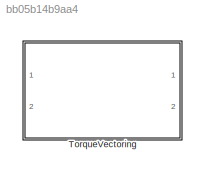
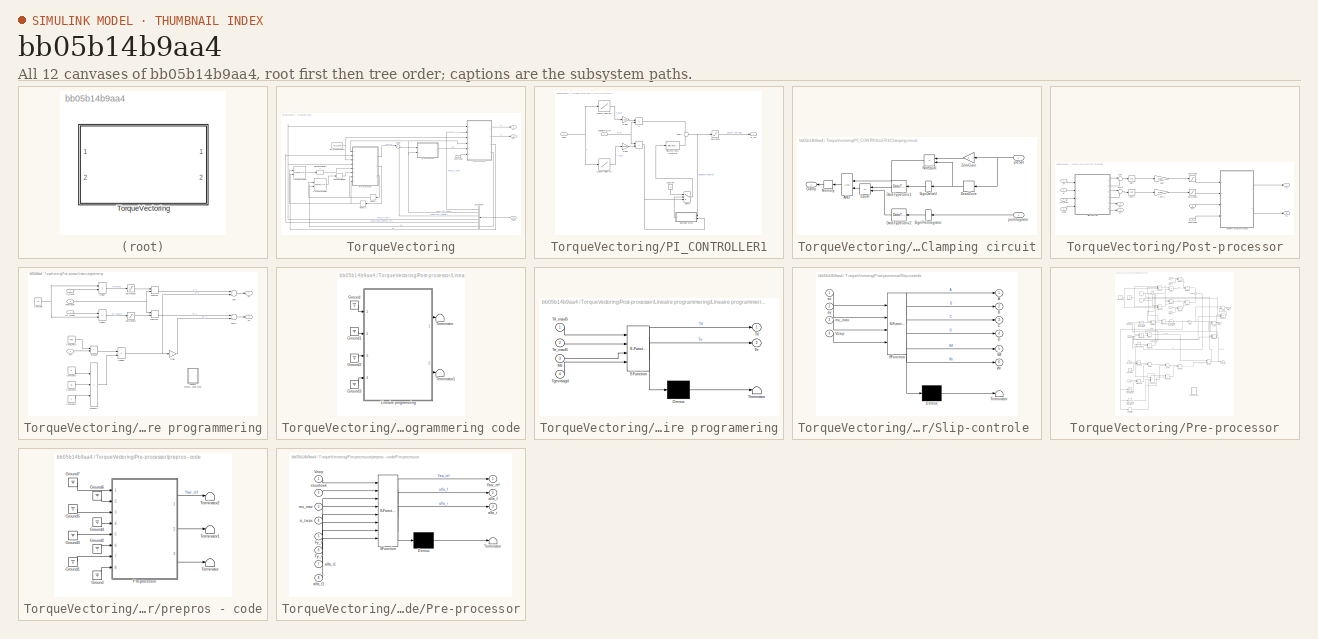
[diagram: thumbnail index - all 12 canvases of the model, root first then tree order]
MODEL slx_bb05b14b9aa4
KIND model
CONFIG AbsTol = auto
CONFIG FixedStep = 0.001
CONFIG MaxStep = auto
CONFIG MinStep = auto
CONFIG RelTol = 1e-3
CONFIG SampleTimeConstraint = Unconstrained
CONFIG Solver = ode4
CONFIG SolverMode = Auto
CONFIG SolverName = ode4
CONFIG StartTime = 0.0
CONFIG StopTime = 10.0
WORKSPACE source: MAT-file member
WORKSPACE g = 9.81
BLOCK [SubSystem] TorqueVectoring
  Ports = [2, 2]
  RequestExecContextInheritance = off
BLOCK [Lookup_n-D] TorqueVectoring/2-D Lookup Table1
  BreakpointsForDimension1 = [-15,-14,-13,-12,-11,-10,-9,-8,-7,-6,-5,-4,-3,-2,-1,0,1,2,3,4,5,6,7,8,9,10,11,12,13,14,15]
  BreakpointsForDimension2 = [200,425,650,875,1100]
  InternalRulePriority = Speed
  Ports = [2, 1]
  RndMeth = Simplest
  Table = reshape([-510,-510,-510,-510,-500,-500,-460,-460,-460,-420,-420,-380,-340,-270,-150,0,150,270,340,380,420,420,460,460,460,500,500,500,500,500,500,-1020,-1020,-1020,-1020,-1000,-1000,-1000,-960,-960,-920,-880,-800,-690,-540,-350,0,350,540,690,800,880,920,960,960,1000,1000,1000,1020,1020,1020,1020,-1540,-1540,-1540,-1540,-1500,-1500,-1500,-1460,-1420,-1360,-1300,-1230,-1040,-800,-500,0,500,800,1040,...<+394ch>
BLOCK [Lookup_n-D] TorqueVectoring/2-D Lookup Table2
  BreakpointsForDimension1 = [-15,-14,-13,-12,-11,-10,-9,-8,-7,-6,-5,-4,-3,-2,-1,0,1,2,3,4,5,6,7,8,9,10,11,12,13,14,15]
  BreakpointsForDimension2 = [200,425,650,875,1100]
  InternalRulePriority = Speed
  Ports = [2, 1]
  RndMeth = Simplest
  Table = reshape([-510,-510,-510,-510,-500,-500,-460,-460,-460,-420,-420,-380,-340,-270,-150,0,150,270,340,380,420,420,460,460,460,500,500,500,500,500,500,-1020,-1020,-1020,-1020,-1000,-1000,-1000,-960,-960,-920,-880,-800,-690,-540,-350,0,350,540,690,800,880,920,960,960,1000,1000,1000,1020,1020,1020,1020,-1540,-1540,-1540,-1540,-1500,-1500,-1500,-1460,-1420,-1360,-1300,-1230,-1040,-800,-500,0,500,800,1040,...<+394ch>
BLOCK [BusSelector] TorqueVectoring/Bus Selector
  OutputSignals = Read_ay_m/s²,Read_Vhcl_Velocity,Read_Vhcl_YawRate,Read_ax_m/s²,Read_Mean_Steering_Angle_Wheels,Read_Steering_angle_rad
  Ports = [1, 6]
BLOCK [Inport] TorqueVectoring/Inputs
  IconDisplay = Port number
  Port = 2
BLOCK [Memory] TorqueVectoring/Memory
  X0 = 0.001
BLOCK [Memory] TorqueVectoring/Memory1
  X0 = 0.001
BLOCK [Constant] TorqueVectoring/Mu_ DroogWegdek
  Value = mu_max
BLOCK [SubSystem] TorqueVectoring/PI_CONTROLLER1
  Ports = [2, 1]
  RequestExecContextInheritance = off
BLOCK [SubSystem] TorqueVectoring/PI_CONTROLLER1/Clamping circuit
  Ports = [2, 1]
  RequestExecContextInheritance = off
BLOCK [Logic] TorqueVectoring/PI_CONTROLLER1/Clamping circuit/AND
  DisableCoverage = on
  Ports = [2, 1]
BLOCK [Outport] TorqueVectoring/PI_CONTROLLER1/Clamping circuit/Clamp
  DisableCoverage = on
  IconDisplay = Port number
BLOCK [DataTypeConversion] TorqueVectoring/PI_CONTROLLER1/Clamping circuit/DataTypeConv1
  DisableCoverage = on
  LockScale = on
  OutDataTypeStr = int8
BLOCK [DataTypeConversion] TorqueVectoring/PI_CONTROLLER1/Clamping circuit/DataTypeConv2
  DisableCoverage = on
  LockScale = on
  OutDataTypeStr = int8
BLOCK [DeadZone] TorqueVectoring/PI_CONTROLLER1/Clamping circuit/DeadZone
  DisableCoverage = on
  LowerValue = -100
  UpperValue = 100
BLOCK [RelationalOperator] TorqueVectoring/PI_CONTROLLER1/Clamping circuit/Equal
  DisableCoverage = on
  Operator = ==
  Ports = [2, 1]
BLOCK [Memory] TorqueVectoring/PI_CONTROLLER1/Clamping circuit/Memory
  DisableCoverage = on
BLOCK [RelationalOperator] TorqueVectoring/PI_CONTROLLER1/Clamping circuit/NotEqual
  DisableCoverage = on
  Operator = ~=
  Ports = [2, 1]
BLOCK [Signum] TorqueVectoring/PI_CONTROLLER1/Clamping circuit/SignDeltaU
  DisableCoverage = on
BLOCK [Signum] TorqueVectoring/PI_CONTROLLER1/Clamping circuit/SignPreIntegrator
  DisableCoverage = on
BLOCK [Gain] TorqueVectoring/PI_CONTROLLER1/Clamping circuit/ZeroGain
  DisableCoverage = on
  Gain = 0
BLOCK [Inport] TorqueVectoring/PI_CONTROLLER1/Clamping circuit/preIntegrator
  DisableCoverage = on
  IconDisplay = Port number
  Port = 2
BLOCK [Inport] TorqueVectoring/PI_CONTROLLER1/Clamping circuit/preSat
  DisableCoverage = on
  IconDisplay = Port number
BLOCK [Constant] TorqueVectoring/PI_CONTROLLER1/Constant
  DisableCoverage = on
  OutDataTypeStr = Inherit: Inherit via back propagation
  PreserveConstantTs = on
  Value = 0
BLOCK [DiscreteIntegrator] TorqueVectoring/PI_CONTROLLER1/Discrete-Time Integrator
  InitialConditionSetting = State (most efficient)
  LimitOutput = on
  LowerSaturationLimit = -100
  Ports = [1, 1]
  SampleTime = 0.001
  UpperSaturationLimit = 100
BLOCK [Gain] TorqueVectoring/PI_CONTROLLER1/Gain1
  Gain = 1/10
  OutDataTypeStr = Inherit: Inherit via internal rule
  ParamDataTypeStr = Inherit: Inherit via internal rule
  SaturateOnIntegerOverflow = off
BLOCK [Gain] TorqueVectoring/PI_CONTROLLER1/Gain2
  Gain = 1/1000
  OutDataTypeStr = Inherit: Inherit via internal rule
  ParamDataTypeStr = Inherit: Inherit via internal rule
  SaturateOnIntegerOverflow = off
BLOCK [Product] TorqueVectoring/PI_CONTROLLER1/I
  InputSameDT = off
  OutDataTypeStr = Inherit: Inherit via internal rule
  Ports = [2, 1]
  SaturateOnIntegerOverflow = off
BLOCK [Lookup] TorqueVectoring/PI_CONTROLLER1/Lookup Table IifV
  InputValues = [-1 1 3 5 7 8 10 12 13 15 18 22 26 30 35 40]
  SaturateOnIntegerOverflow = off
  Table = [50352886.7892156 50352886.7892156 5589135.45551528 1921428.35851846 975393.735493402 705695.225360316 447460.758905211 279243.629097448 236454.771525978 158654.332416002 94344.5016145154 48661.6461191947 26632.8595225856 13884.3621478696 5589.69756030357 1773.78141835761]
BLOCK [Lookup] TorqueVectoring/PI_CONTROLLER1/Lookup Table PifV
  InputValues = [-1 1 3 5 7 8 10 12 13 15 18 22 26 30 35 40]
  SaturateOnIntegerOverflow = off
  Table = [34635.2718980569 34635.2718980569 11590.7926431014 6627.38536761836 4783.12358808128 3932.42492202412 3196.93917901615 2407.06272090184 2253.13792386493 1777.83703218778 1346.39413645714 954.27715290151 744.973517942164 573.513734145603 406.894553185122 261.731683767634]
BLOCK [Product] TorqueVectoring/PI_CONTROLLER1/P
  InputSameDT = off
  OutDataTypeStr = Inherit: Inherit via internal rule
  Ports = [2, 1]
  SaturateOnIntegerOverflow = off
BLOCK [Outport] TorqueVectoring/PI_CONTROLLER1/PI_out
  IconDisplay = Port number
BLOCK [Saturate] TorqueVectoring/PI_CONTROLLER1/Saturation
  InputPortMap = u0
  LowerLimit = -500
  Ports = [1, 1]
  UpperLimit = 500
BLOCK [Sum] TorqueVectoring/PI_CONTROLLER1/Sum1
  IconShape = round
  InputSameDT = off
  OutDataTypeStr = Inherit: Inherit via internal rule
  Ports = [2, 1]
  SaturateOnIntegerOverflow = off
BLOCK [Switch] TorqueVectoring/PI_CONTROLLER1/Switch
  Criteria = u2 > Threshold
BLOCK [Inport] TorqueVectoring/PI_CONTROLLER1/Vzwp
  IconDisplay = Port number
  Port = 2
BLOCK [Inport] TorqueVectoring/PI_CONTROLLER1/YawRate-Error
  IconDisplay = Port number
BLOCK [SubSystem] TorqueVectoring/Post-processor
  Ports = [6, 4]
  RequestExecContextInheritance = off
BLOCK [SubSystem] TorqueVectoring/Post-processor/Lineaire programmering
  Ports = [4, 2]
  RequestExecContextInheritance = off
BLOCK [Constant] TorqueVectoring/Post-processor/Lineaire programmering/Constant
  Value = Gr
BLOCK [Constant] TorqueVectoring/Post-processor/Lineaire programmering/Constant1
  Value = Reff
BLOCK [Constant] TorqueVectoring/Post-processor/Lineaire programmering/Constant2
  Value = Sr
BLOCK [Constant] TorqueVectoring/Post-processor/Lineaire programmering/Constant3
  Value = 2
BLOCK [Constant] TorqueVectoring/Post-processor/Lineaire programmering/Constant4
  Value = Gr
BLOCK [Product] TorqueVectoring/Post-processor/Lineaire programmering/Divide
  InputSameDT = off
  Inputs = /*
  OutDataTypeStr = Inherit: Inherit via internal rule
  Ports = [2, 1]
  RndMeth = Floor
  SaturateOnIntegerOverflow = off
BLOCK [Product] TorqueVectoring/Post-processor/Lineaire programmering/Divide1
  InputSameDT = off
  Inputs = */
  OutDataTypeStr = Inherit: Inherit via internal rule
  Ports = [2, 1]
  RndMeth = Floor
  SaturateOnIntegerOverflow = off
BLOCK [Product] TorqueVectoring/Post-processor/Lineaire programmering/Divide2
  InputSameDT = off
  Inputs = */
  OutDataTypeStr = Inherit: Inherit via internal rule
  Ports = [2, 1]
  RndMeth = Floor
  SaturateOnIntegerOverflow = off
BLOCK [Gain] TorqueVectoring/Post-processor/Lineaire programmering/Gain
  Gain = -1
  OutDataTypeStr = Inherit: Inherit via internal rule
  ParamDataTypeStr = Inherit: Inherit via internal rule
  SaturateOnIntegerOverflow = off
BLOCK [SubSystem] TorqueVectoring/Post-processor/Lineaire programmering/Lineaire programmering code
  Ports = []
  RequestExecContextInheritance = off
BLOCK [Ground] TorqueVectoring/Post-processor/Lineaire programmering/Lineaire programmering code/Ground
BLOCK [Ground] TorqueVectoring/Post-processor/Lineaire programmering/Lineaire programmering code/Ground1
BLOCK [Ground] TorqueVectoring/Post-processor/Lineaire programmering/Lineaire programmering code/Ground2
BLOCK [Ground] TorqueVectoring/Post-processor/Lineaire programmering/Lineaire programmering code/Ground3
BLOCK [SubSystem] TorqueVectoring/Post-processor/Lineaire programmering/Lineaire programmering code/Lineaire programering
  ErrorFcn = Stateflow.Translate.translate
  PermitHierarchicalResolution = ExplicitOnly
  Ports = [4, 2]
  RequestExecContextInheritance = off
  SFBlockType = MATLAB Function
  TreatAsAtomicUnit = on
BLOCK [Demux] TorqueVectoring/Post-processor/Lineaire programmering/Lineaire programmering code/Lineaire programering/ Demux 
  Outputs = 1
  Ports = [1, 1]
BLOCK [S-Function] TorqueVectoring/Post-processor/Lineaire programmering/Lineaire programmering code/Lineaire programering/ SFunction 
  EnableBusSupport = on
  FunctionName = sf_sfun
  PortCounts = [4 3]
  Ports = [4, 3]
  Tag = Stateflow S-Function Torque_Vectoring_Controller 8
BLOCK [Terminator] TorqueVectoring/Post-processor/Lineaire programmering/Lineaire programmering code/Lineaire programering/ Terminator 
BLOCK [Inport] TorqueVectoring/Post-processor/Lineaire programmering/Lineaire programmering code/Lineaire programering/Mz
  IconDisplay = Port number
  Port = 3
BLOCK [Inport] TorqueVectoring/Post-processor/Lineaire programmering/Lineaire programmering code/Lineaire programering/Tgevraagd
  IconDisplay = Port number
  Port = 4
BLOCK [Outport] TorqueVectoring/Post-processor/Lineaire programmering/Lineaire programmering code/Lineaire programering/Trl
  IconDisplay = Port number
BLOCK [Inport] TorqueVectoring/Post-processor/Lineaire programmering/Lineaire programmering code/Lineaire programering/Trl_maxB
  IconDisplay = Port number
BLOCK [Outport] TorqueVectoring/Post-processor/Lineaire programmering/Lineaire programmering code/Lineaire programering/Trr
  IconDisplay = Port number
  Port = 2
BLOCK [Inport] TorqueVectoring/Post-processor/Lineaire programmering/Lineaire programmering code/Lineaire programering/Trr_maxB
  IconDisplay = Port number
  Port = 2
BLOCK [Terminator] TorqueVectoring/Post-processor/Lineaire programmering/Lineaire programmering code/Terminator
BLOCK [Terminator] TorqueVectoring/Post-processor/Lineaire programmering/Lineaire programmering code/Terminator1
BLOCK [MinMax] TorqueVectoring/Post-processor/Lineaire programmering/MinMax
  InputSameDT = off
  Inputs = 2
  Ports = [2, 1]
  SaturateOnIntegerOverflow = off
BLOCK [MinMax] TorqueVectoring/Post-processor/Lineaire programmering/MinMax1
  InputSameDT = off
  Inputs = 2
  Ports = [2, 1]
  SaturateOnIntegerOverflow = off
BLOCK [Inport] TorqueVectoring/Post-processor/Lineaire programmering/Mz
  IconDisplay = Port number
  Port = 3
BLOCK [Product] TorqueVectoring/Post-processor/Lineaire programmering/Product
  InputSameDT = off
  OutDataTypeStr = Inherit: Inherit via internal rule
  Ports = [2, 1]
  RndMeth = Floor
  SaturateOnIntegerOverflow = off
BLOCK [Product] TorqueVectoring/Post-processor/Lineaire programmering/Product1
  InputSameDT = off
  Inputs = 3
  OutDataTypeStr = Inherit: Inherit via internal rule
  Ports = [3, 1]
  RndMeth = Floor
  SaturateOnIntegerOverflow = off
BLOCK [Saturate] TorqueVectoring/Post-processor/Lineaire programmering/Saturation1
  InputPortMap = u0
  LowerLimit = -Tmax
  Ports = [1, 1]
  UpperLimit = Tmax
BLOCK [Saturate] TorqueVectoring/Post-processor/Lineaire programmering/Saturation2
  InputPortMap = u0
  LowerLimit = -Tmax
  Ports = [1, 1]
  UpperLimit = Tmax
BLOCK [Sum] TorqueVectoring/Post-processor/Lineaire programmering/Sum
  InputSameDT = off
  OutDataTypeStr = Inherit: Inherit via internal rule
  Ports = [2, 1]
  SaturateOnIntegerOverflow = off
BLOCK [Sum] TorqueVectoring/Post-processor/Lineaire programmering/Sum1
  InputSameDT = off
  OutDataTypeStr = Inherit: Inherit via internal rule
  Ports = [2, 1]
  SaturateOnIntegerOverflow = off
BLOCK [Inport] TorqueVectoring/Post-processor/Lineaire programmering/Tgevraagd
  IconDisplay = Port number
  Port = 4
BLOCK [Outport] TorqueVectoring/Post-processor/Lineaire programmering/Trl
  IconDisplay = Port number
BLOCK [Inport] TorqueVectoring/Post-processor/Lineaire programmering/Trl_maxB
  IconDisplay = Port number
BLOCK [Outport] TorqueVectoring/Post-processor/Lineaire programmering/Trr
  IconDisplay = Port number
  Port = 2
BLOCK [Inport] TorqueVectoring/Post-processor/Lineaire programmering/Trr_maxB
  IconDisplay = Port number
  Port = 2
BLOCK [Inport] TorqueVectoring/Post-processor/Mz
  IconDisplay = Port number
  Port = 5
BLOCK [Gain] TorqueVectoring/Post-processor/Reff
  Gain = Reff
  OutDataTypeStr = Inherit: Inherit via internal rule
  ParamDataTypeStr = Inherit: Inherit via internal rule
  SaturateOnIntegerOverflow = off
BLOCK [Gain] TorqueVectoring/Post-processor/Reff1
  Gain = Reff
  OutDataTypeStr = Inherit: Inherit via internal rule
  ParamDataTypeStr = Inherit: Inherit via internal rule
  SaturateOnIntegerOverflow = off
BLOCK [Saturate] TorqueVectoring/Post-processor/Saturation
  InputPortMap = u0
  LowerLimit = -Gr*Tmax*mu_max
  Ports = [1, 1]
  UpperLimit = Gr*Tmax*mu_max
BLOCK [Saturate] TorqueVectoring/Post-processor/Saturation1
  InputPortMap = u0
  LowerLimit = -Gr*Tmax*mu_max
  Ports = [1, 1]
  UpperLimit = Gr*Tmax*mu_max
BLOCK [SubSystem] TorqueVectoring/Post-processor/Slip-controle 
  ErrorFcn = Stateflow.Translate.translate
  PermitHierarchicalResolution = ExplicitOnly
  Ports = [4, 6]
  RequestExecContextInheritance = off
  SFBlockType = MATLAB Function
  TreatAsAtomicUnit = on
BLOCK [Demux] TorqueVectoring/Post-processor/Slip-controle / Demux 
  Outputs = 1
  Ports = [1, 1]
BLOCK [S-Function] TorqueVectoring/Post-processor/Slip-controle / SFunction 
  EnableBusSupport = on
  FunctionName = sf_sfun
  PortCounts = [4 7]
  Ports = [4, 7]
  Tag = Stateflow S-Function Torque_Vectoring_Controller 9
BLOCK [Terminator] TorqueVectoring/Post-processor/Slip-controle / Terminator 
BLOCK [Outport] TorqueVectoring/Post-processor/Slip-controle /A
  IconDisplay = Port number
BLOCK [Outport] TorqueVectoring/Post-processor/Slip-controle /B
  IconDisplay = Port number
  Port = 2
BLOCK [Outport] TorqueVectoring/Post-processor/Slip-controle /C
  IconDisplay = Port number
  Port = 3
BLOCK [Outport] TorqueVectoring/Post-processor/Slip-controle /D
  IconDisplay = Port number
  Port = 4
BLOCK [Inport] TorqueVectoring/Post-processor/Slip-controle /Vzwp
  IconDisplay = Port number
  Port = 4
BLOCK [Outport] TorqueVectoring/Post-processor/Slip-controle /Wf
  IconDisplay = Port number
  Port = 5
BLOCK [Outport] TorqueVectoring/Post-processor/Slip-controle /Wr
  IconDisplay = Port number
  Port = 6
BLOCK [Inport] TorqueVectoring/Post-processor/Slip-controle /ax
  IconDisplay = Port number
BLOCK [Inport] TorqueVectoring/Post-processor/Slip-controle /ay
  IconDisplay = Port number
  Port = 2
BLOCK [Inport] TorqueVectoring/Post-processor/Slip-controle /mu_max
  IconDisplay = Port number
  Port = 3
BLOCK [Sqrt] TorqueVectoring/Post-processor/Sqrt
BLOCK [Sqrt] TorqueVectoring/Post-processor/Sqrt1
BLOCK [Sum] TorqueVectoring/Post-processor/Sum
  IconShape = round
  InputSameDT = off
  Inputs = |++
  OutDataTypeStr = Inherit: Inherit via internal rule
  Ports = [2, 1]
  SaturateOnIntegerOverflow = off
BLOCK [Sum] TorqueVectoring/Post-processor/Sum1
  IconShape = round
  InputSameDT = off
  Inputs = |++
  OutDataTypeStr = Inherit: Inherit via internal rule
  Ports = [2, 1]
  SaturateOnIntegerOverflow = off
BLOCK [Inport] TorqueVectoring/Post-processor/Tgevraagd
  IconDisplay = Port number
  Port = 6
BLOCK [Outport] TorqueVectoring/Post-processor/Trl
  IconDisplay = Port number
BLOCK [Outport] TorqueVectoring/Post-processor/Trr
  IconDisplay = Port number
  Port = 2
BLOCK [Inport] TorqueVectoring/Post-processor/Vzwp
  IconDisplay = Port number
  Port = 4
BLOCK [Outport] TorqueVectoring/Post-processor/Wf
  IconDisplay = Port number
  Port = 3
BLOCK [Outport] TorqueVectoring/Post-processor/Wr
  IconDisplay = Port number
  Port = 4
BLOCK [Inport] TorqueVectoring/Post-processor/ax
  IconDisplay = Port number
BLOCK [Inport] TorqueVectoring/Post-processor/ay
  IconDisplay = Port number
  Port = 2
BLOCK [Inport] TorqueVectoring/Post-processor/mu_max
  IconDisplay = Port number
  Port = 3
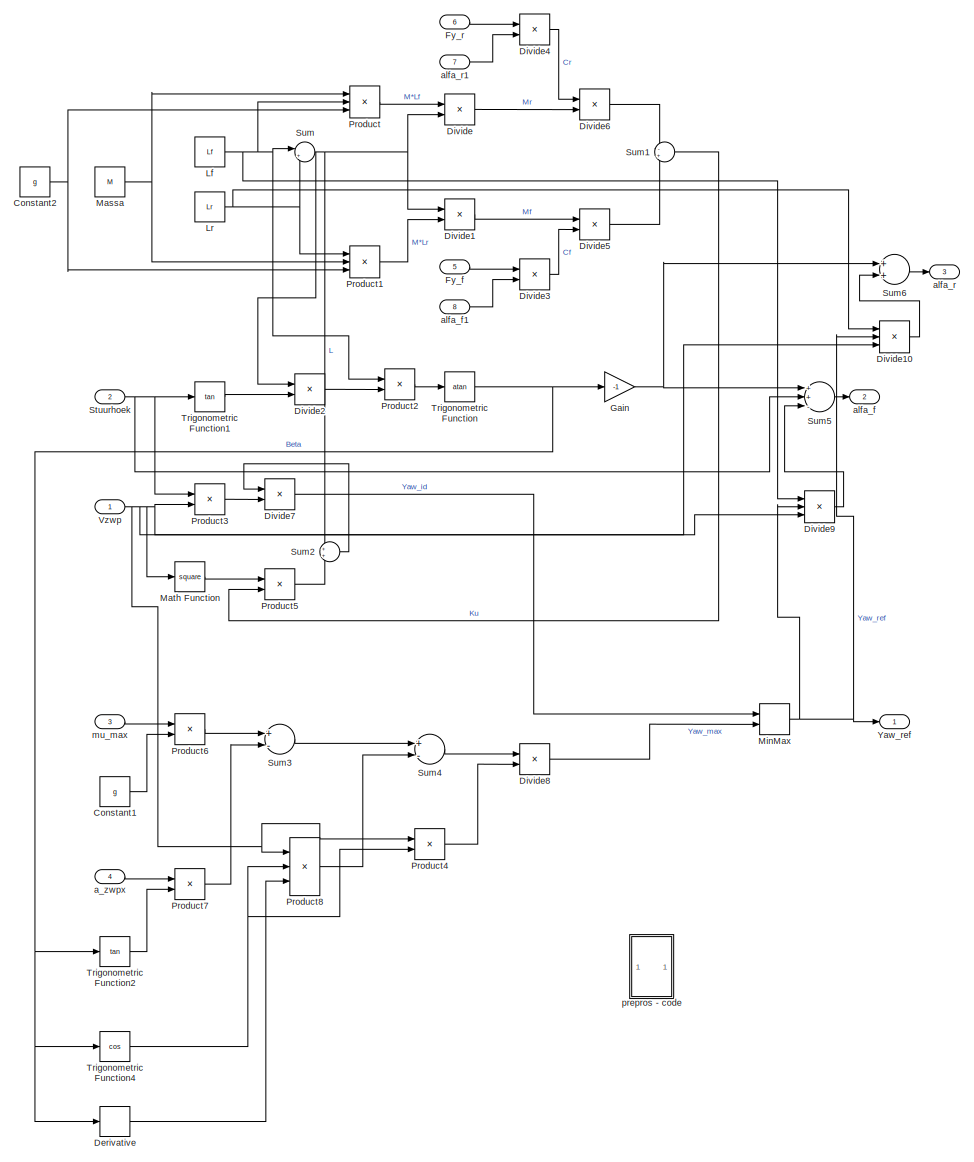
[diagram: TorqueVectoring/Pre-processor - part 1/1, most of the canvas]
BLOCK [SubSystem] TorqueVectoring/Pre-processor
  Ports = [8, 3]
  RequestExecContextInheritance = off
BLOCK [Constant] TorqueVectoring/Pre-processor/Constant1
  Value = g
BLOCK [Constant] TorqueVectoring/Pre-processor/Constant2
  Value = g
BLOCK [Derivative] TorqueVectoring/Pre-processor/Derivative
BLOCK [Product] TorqueVectoring/Pre-processor/Divide
  InputSameDT = off
  Inputs = */
  OutDataTypeStr = Inherit: Inherit via internal rule
  Ports = [2, 1]
  RndMeth = Floor
  SaturateOnIntegerOverflow = off
BLOCK [Product] TorqueVectoring/Pre-processor/Divide1
  InputSameDT = off
  Inputs = /*
  OutDataTypeStr = Inherit: Inherit via internal rule
  Ports = [2, 1]
  RndMeth = Floor
  SaturateOnIntegerOverflow = off
BLOCK [Product] TorqueVectoring/Pre-processor/Divide10
  InputSameDT = off
  Inputs = **/
  OutDataTypeStr = Inherit: Inherit via internal rule
  Ports = [3, 1]
  RndMeth = Floor
  SaturateOnIntegerOverflow = off
BLOCK [Product] TorqueVectoring/Pre-processor/Divide2
  InputSameDT = off
  Inputs = /*
  OutDataTypeStr = Inherit: Inherit via internal rule
  Ports = [2, 1]
  RndMeth = Floor
  SaturateOnIntegerOverflow = off
BLOCK [Product] TorqueVectoring/Pre-processor/Divide3
  InputSameDT = off
  Inputs = */
  OutDataTypeStr = Inherit: Inherit via internal rule
  Ports = [2, 1]
  RndMeth = Floor
  SaturateOnIntegerOverflow = off
BLOCK [Product] TorqueVectoring/Pre-processor/Divide4
  InputSameDT = off
  Inputs = */
  OutDataTypeStr = Inherit: Inherit via internal rule
  Ports = [2, 1]
  RndMeth = Floor
  SaturateOnIntegerOverflow = off
BLOCK [Product] TorqueVectoring/Pre-processor/Divide5
  InputSameDT = off
  Inputs = */
  OutDataTypeStr = Inherit: Inherit via internal rule
  Ports = [2, 1]
  RndMeth = Floor
  SaturateOnIntegerOverflow = off
BLOCK [Product] TorqueVectoring/Pre-processor/Divide6
  InputSameDT = off
  Inputs = /*
  OutDataTypeStr = Inherit: Inherit via internal rule
  Ports = [2, 1]
  RndMeth = Floor
  SaturateOnIntegerOverflow = off
BLOCK [Product] TorqueVectoring/Pre-processor/Divide7
  InputSameDT = off
  Inputs = /*
  OutDataTypeStr = Inherit: Inherit via internal rule
  Ports = [2, 1]
  RndMeth = Floor
  SaturateOnIntegerOverflow = off
BLOCK [Product] TorqueVectoring/Pre-processor/Divide8
  InputSameDT = off
  Inputs = */
  OutDataTypeStr = Inherit: Inherit via internal rule
  Ports = [2, 1]
  RndMeth = Floor
  SaturateOnIntegerOverflow = off
BLOCK [Product] TorqueVectoring/Pre-processor/Divide9
  InputSameDT = off
  Inputs = **/
  OutDataTypeStr = Inherit: Inherit via internal rule
  Ports = [3, 1]
  RndMeth = Floor
  SaturateOnIntegerOverflow = off
BLOCK [Inport] TorqueVectoring/Pre-processor/Fy_f
  IconDisplay = Port number
  Port = 5
BLOCK [Inport] TorqueVectoring/Pre-processor/Fy_r
  IconDisplay = Port number
  Port = 6
BLOCK [Gain] TorqueVectoring/Pre-processor/Gain
  Gain = -1
  OutDataTypeStr = Inherit: Inherit via internal rule
  ParamDataTypeStr = Inherit: Inherit via internal rule
  SaturateOnIntegerOverflow = off
BLOCK [Constant] TorqueVectoring/Pre-processor/Lf
  Value = Lf
BLOCK [Constant] TorqueVectoring/Pre-processor/Lr
  Value = Lr
BLOCK [Constant] TorqueVectoring/Pre-processor/Massa
  Value = M
BLOCK [Math] TorqueVectoring/Pre-processor/Math Function
  Operator = square
  Ports = [1, 1]
BLOCK [MinMax] TorqueVectoring/Pre-processor/MinMax
  InputSameDT = off
  Inputs = 2
  Ports = [2, 1]
  SaturateOnIntegerOverflow = off
BLOCK [Product] TorqueVectoring/Pre-processor/Product
  InputSameDT = off
  Inputs = 3
  OutDataTypeStr = Inherit: Inherit via internal rule
  Ports = [3, 1]
  RndMeth = Floor
  SaturateOnIntegerOverflow = off
BLOCK [Product] TorqueVectoring/Pre-processor/Product1
  InputSameDT = off
  Inputs = 3
  OutDataTypeStr = Inherit: Inherit via internal rule
  Ports = [3, 1]
  RndMeth = Floor
  SaturateOnIntegerOverflow = off
BLOCK [Product] TorqueVectoring/Pre-processor/Product2
  InputSameDT = off
  OutDataTypeStr = Inherit: Inherit via internal rule
  Ports = [2, 1]
  RndMeth = Floor
  SaturateOnIntegerOverflow = off
BLOCK [Product] TorqueVectoring/Pre-processor/Product3
  InputSameDT = off
  OutDataTypeStr = Inherit: Inherit via internal rule
  Ports = [2, 1]
  RndMeth = Floor
  SaturateOnIntegerOverflow = off
BLOCK [Product] TorqueVectoring/Pre-processor/Product4
  InputSameDT = off
  OutDataTypeStr = Inherit: Inherit via internal rule
  Ports = [2, 1]
  RndMeth = Floor
  SaturateOnIntegerOverflow = off
BLOCK [Product] TorqueVectoring/Pre-processor/Product5
  InputSameDT = off
  OutDataTypeStr = Inherit: Inherit via internal rule
  Ports = [2, 1]
  RndMeth = Floor
  SaturateOnIntegerOverflow = off
BLOCK [Product] TorqueVectoring/Pre-processor/Product6
  InputSameDT = off
  OutDataTypeStr = Inherit: Inherit via internal rule
  Ports = [2, 1]
  RndMeth = Floor
  SaturateOnIntegerOverflow = off
BLOCK [Product] TorqueVectoring/Pre-processor/Product7
  InputSameDT = off
  OutDataTypeStr = Inherit: Inherit via internal rule
  Ports = [2, 1]
  RndMeth = Floor
  SaturateOnIntegerOverflow = off
BLOCK [Product] TorqueVectoring/Pre-processor/Product8
  InputSameDT = off
  Inputs = 3
  OutDataTypeStr = Inherit: Inherit via internal rule
  Ports = [3, 1]
  RndMeth = Floor
  SaturateOnIntegerOverflow = off
BLOCK [Inport] TorqueVectoring/Pre-processor/Stuurhoek
  IconDisplay = Port number
  Port = 2
BLOCK [Sum] TorqueVectoring/Pre-processor/Sum
  IconShape = round
  InputSameDT = off
  Inputs = |++
  OutDataTypeStr = Inherit: Inherit via internal rule
  Ports = [2, 1]
  SaturateOnIntegerOverflow = off
BLOCK [Sum] TorqueVectoring/Pre-processor/Sum1
  IconShape = round
  InputSameDT = off
  Inputs = -+
  OutDataTypeStr = Inherit: Inherit via internal rule
  Ports = [2, 1]
  SaturateOnIntegerOverflow = off
BLOCK [Sum] TorqueVectoring/Pre-processor/Sum2
  IconShape = round
  InputSameDT = off
  OutDataTypeStr = Inherit: Inherit via internal rule
  Ports = [2, 1]
  SaturateOnIntegerOverflow = off
BLOCK [Sum] TorqueVectoring/Pre-processor/Sum3
  InputSameDT = off
  Inputs = +-
  OutDataTypeStr = Inherit: Inherit via internal rule
  Ports = [2, 1]
  SaturateOnIntegerOverflow = off
BLOCK [Sum] TorqueVectoring/Pre-processor/Sum4
  InputSameDT = off
  Inputs = +-
  OutDataTypeStr = Inherit: Inherit via internal rule
  Ports = [2, 1]
  SaturateOnIntegerOverflow = off
BLOCK [Sum] TorqueVectoring/Pre-processor/Sum5
  InputSameDT = off
  Inputs = ++-
  OutDataTypeStr = Inherit: Inherit via internal rule
  Ports = [3, 1]
  SaturateOnIntegerOverflow = off
BLOCK [Sum] TorqueVectoring/Pre-processor/Sum6
  InputSameDT = off
  OutDataTypeStr = Inherit: Inherit via internal rule
  Ports = [2, 1]
  SaturateOnIntegerOverflow = off
BLOCK [Trigonometry] TorqueVectoring/Pre-processor/Trigonometric Function
  Operator = atan
  Ports = [1, 1]
BLOCK [Trigonometry] TorqueVectoring/Pre-processor/Trigonometric Function1
  Operator = tan
  Ports = [1, 1]
BLOCK [Trigonometry] TorqueVectoring/Pre-processor/Trigonometric Function2
  Operator = tan
  Ports = [1, 1]
BLOCK [Trigonometry] TorqueVectoring/Pre-processor/Trigonometric Function4
  Operator = cos
  Ports = [1, 1]
BLOCK [Inport] TorqueVectoring/Pre-processor/Vzwp
  IconDisplay = Port number
BLOCK [Outport] TorqueVectoring/Pre-processor/Yaw_ref
  IconDisplay = Port number
BLOCK [Inport] TorqueVectoring/Pre-processor/a_zwpx
  IconDisplay = Port number
  Port = 4
BLOCK [Outport] TorqueVectoring/Pre-processor/alfa_f
  IconDisplay = Port number
  Port = 2
BLOCK [Inport] TorqueVectoring/Pre-processor/alfa_f1
  IconDisplay = Port number
  Port = 8
BLOCK [Outport] TorqueVectoring/Pre-processor/alfa_r
  IconDisplay = Port number
  Port = 3
BLOCK [Inport] TorqueVectoring/Pre-processor/alfa_r1
  IconDisplay = Port number
  Port = 7
BLOCK [Inport] TorqueVectoring/Pre-processor/mu_max
  IconDisplay = Port number
  Port = 3
BLOCK [SubSystem] TorqueVectoring/Pre-processor/prepros - code
  Ports = []
  RequestExecContextInheritance = off
BLOCK [Ground] TorqueVectoring/Pre-processor/prepros - code/Ground
BLOCK [Ground] TorqueVectoring/Pre-processor/prepros - code/Ground1
BLOCK [Ground] TorqueVectoring/Pre-processor/prepros - code/Ground2
BLOCK [Ground] TorqueVectoring/Pre-processor/prepros - code/Ground3
BLOCK [Ground] TorqueVectoring/Pre-processor/prepros - code/Ground4
BLOCK [Ground] TorqueVectoring/Pre-processor/prepros - code/Ground5
BLOCK [Ground] TorqueVectoring/Pre-processor/prepros - code/Ground6
BLOCK [Ground] TorqueVectoring/Pre-processor/prepros - code/Ground7
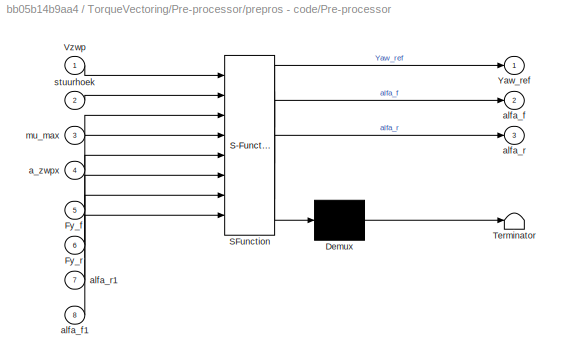
BLOCK [SubSystem] TorqueVectoring/Pre-processor/prepros - code/Pre-processor
  ErrorFcn = Stateflow.Translate.translate
  PermitHierarchicalResolution = ExplicitOnly
  Ports = [8, 3]
  RequestExecContextInheritance = off
  SFBlockType = MATLAB Function
  TreatAsAtomicUnit = on
BLOCK [Demux] TorqueVectoring/Pre-processor/prepros - code/Pre-processor/ Demux 
  Outputs = 1
  Ports = [1, 1]
BLOCK [S-Function] TorqueVectoring/Pre-processor/prepros - code/Pre-processor/ SFunction 
  EnableBusSupport = on
  FunctionName = sf_sfun
  PortCounts = [8 4]
  Ports = [8, 4]
  Tag = Stateflow S-Function Torque_Vectoring_Controller 10
BLOCK [Terminator] TorqueVectoring/Pre-processor/prepros - code/Pre-processor/ Terminator 
BLOCK [Inport] TorqueVectoring/Pre-processor/prepros - code/Pre-processor/Fy_f
  IconDisplay = Port number
  Port = 5
BLOCK [Inport] TorqueVectoring/Pre-processor/prepros - code/Pre-processor/Fy_r
  IconDisplay = Port number
  Port = 6
BLOCK [Inport] TorqueVectoring/Pre-processor/prepros - code/Pre-processor/Vzwp
  IconDisplay = Port number
BLOCK [Outport] TorqueVectoring/Pre-processor/prepros - code/Pre-processor/Yaw_ref
  IconDisplay = Port number
BLOCK [Inport] TorqueVectoring/Pre-processor/prepros - code/Pre-processor/a_zwpx
  IconDisplay = Port number
  Port = 4
BLOCK [Outport] TorqueVectoring/Pre-processor/prepros - code/Pre-processor/alfa_f
  IconDisplay = Port number
  Port = 2
BLOCK [Inport] TorqueVectoring/Pre-processor/prepros - code/Pre-processor/alfa_f1
  IconDisplay = Port number
  Port = 8
BLOCK [Outport] TorqueVectoring/Pre-processor/prepros - code/Pre-processor/alfa_r
  IconDisplay = Port number
  Port = 3
BLOCK [Inport] TorqueVectoring/Pre-processor/prepros - code/Pre-processor/alfa_r1
  IconDisplay = Port number
  Port = 7
BLOCK [Inport] TorqueVectoring/Pre-processor/prepros - code/Pre-processor/mu_max
  IconDisplay = Port number
  Port = 3
BLOCK [Inport] TorqueVectoring/Pre-processor/prepros - code/Pre-processor/stuurhoek
  IconDisplay = Port number
  Port = 2
BLOCK [Terminator] TorqueVectoring/Pre-processor/prepros - code/Terminator
BLOCK [Terminator] TorqueVectoring/Pre-processor/prepros - code/Terminator1
BLOCK [Terminator] TorqueVectoring/Pre-processor/prepros - code/Terminator2
BLOCK [SignalSpecification] TorqueVectoring/Signal Specification
  Dimensions = 1
BLOCK [SignalSpecification] TorqueVectoring/Signal Specification1
  Dimensions = 1
BLOCK [Sum] TorqueVectoring/Sum4
  IconShape = round
  InputSameDT = off
  Inputs = |+-
  OutDataTypeStr = Inherit: Inherit via internal rule
  Ports = [2, 1]
  SaturateOnIntegerOverflow = off
BLOCK [Inport] TorqueVectoring/Tgevraagd
  IconDisplay = Port number
BLOCK [Outport] TorqueVectoring/Trl
  IconDisplay = Port number
BLOCK [Outport] TorqueVectoring/Trr
  IconDisplay = Port number
  Port = 2
LINE TorqueVectoring/2-D Lookup Table1:1 -> TorqueVectoring/Signal Specification1:1
LINE TorqueVectoring/2-D Lookup Table2:1 -> TorqueVectoring/Signal Specification:1
LINE TorqueVectoring/Bus Selector:1 -> TorqueVectoring/Post-processor:2
NET TorqueVectoring/Bus Selector:2 -> TorqueVectoring/PI_CONTROLLER1:2, TorqueVectoring/Post-processor:4, TorqueVectoring/Pre-processor:1
LINE TorqueVectoring/Bus Selector:3 -> TorqueVectoring/Sum4:2
NET TorqueVectoring/Bus Selector:4 -> TorqueVectoring/Post-processor:1, TorqueVectoring/Pre-processor:4
LINE TorqueVectoring/Bus Selector:5 -> TorqueVectoring/Pre-processor:2
LINE TorqueVectoring/Inputs:1 -> TorqueVectoring/Bus Selector:1
NET TorqueVectoring/Memory1:1 -> TorqueVectoring/2-D Lookup Table1:1, TorqueVectoring/Pre-processor:8
NET TorqueVectoring/Memory:1 -> TorqueVectoring/2-D Lookup Table2:1, TorqueVectoring/Pre-processor:7
NET TorqueVectoring/Mu_ DroogWegdek:1 -> TorqueVectoring/Post-processor:3, TorqueVectoring/Pre-processor:3
LINE TorqueVectoring/PI_CONTROLLER1/Clamping circuit/AND:1 -> TorqueVectoring/PI_CONTROLLER1/Clamping circuit/Memory:1
LINE TorqueVectoring/PI_CONTROLLER1/Clamping circuit/DataTypeConv1:1 -> TorqueVectoring/PI_CONTROLLER1/Clamping circuit/Equal:1
LINE TorqueVectoring/PI_CONTROLLER1/Clamping circuit/DataTypeConv2:1 -> TorqueVectoring/PI_CONTROLLER1/Clamping circuit/Equal:2
NET TorqueVectoring/PI_CONTROLLER1/Clamping circuit/DeadZone:1 -> TorqueVectoring/PI_CONTROLLER1/Clamping circuit/NotEqual:2, TorqueVectoring/PI_CONTROLLER1/Clamping circuit/SignDeltaU:1
LINE TorqueVectoring/PI_CONTROLLER1/Clamping circuit/Equal:1 -> TorqueVectoring/PI_CONTROLLER1/Clamping circuit/AND:2
LINE TorqueVectoring/PI_CONTROLLER1/Clamping circuit/Memory:1 -> TorqueVectoring/PI_CONTROLLER1/Clamping circuit/Clamp:1
LINE TorqueVectoring/PI_CONTROLLER1/Clamping circuit/NotEqual:1 -> TorqueVectoring/PI_CONTROLLER1/Clamping circuit/AND:1
LINE TorqueVectoring/PI_CONTROLLER1/Clamping circuit/SignDeltaU:1 -> TorqueVectoring/PI_CONTROLLER1/Clamping circuit/DataTypeConv1:1
LINE TorqueVectoring/PI_CONTROLLER1/Clamping circuit/SignPreIntegrator:1 -> TorqueVectoring/PI_CONTROLLER1/Clamping circuit/DataTypeConv2:1
LINE TorqueVectoring/PI_CONTROLLER1/Clamping circuit/ZeroGain:1 -> TorqueVectoring/PI_CONTROLLER1/Clamping circuit/NotEqual:1
LINE TorqueVectoring/PI_CONTROLLER1/Clamping circuit/preIntegrator:1 -> TorqueVectoring/PI_CONTROLLER1/Clamping circuit/SignPreIntegrator:1
NET TorqueVectoring/PI_CONTROLLER1/Clamping circuit/preSat:1 -> TorqueVectoring/PI_CONTROLLER1/Clamping circuit/DeadZone:1, TorqueVectoring/PI_CONTROLLER1/Clamping circuit/ZeroGain:1
LINE TorqueVectoring/PI_CONTROLLER1/Clamping circuit:1 -> TorqueVectoring/PI_CONTROLLER1/Switch:2
LINE TorqueVectoring/PI_CONTROLLER1/Constant:1 -> TorqueVectoring/PI_CONTROLLER1/Switch:1
LINE TorqueVectoring/PI_CONTROLLER1/Discrete-Time Integrator:1 -> TorqueVectoring/PI_CONTROLLER1/Sum1:2
LINE TorqueVectoring/PI_CONTROLLER1/Gain1:1 -> TorqueVectoring/PI_CONTROLLER1/P:1
LINE TorqueVectoring/PI_CONTROLLER1/Gain2:1 -> TorqueVectoring/PI_CONTROLLER1/I:2
NET TorqueVectoring/PI_CONTROLLER1/I:1 -> TorqueVectoring/PI_CONTROLLER1/Clamping circuit:2, TorqueVectoring/PI_CONTROLLER1/Switch:3
LINE TorqueVectoring/PI_CONTROLLER1/Lookup Table IifV:1 -> TorqueVectoring/PI_CONTROLLER1/Gain2:1
LINE TorqueVectoring/PI_CONTROLLER1/Lookup Table PifV:1 -> TorqueVectoring/PI_CONTROLLER1/Gain1:1
LINE TorqueVectoring/PI_CONTROLLER1/P:1 -> TorqueVectoring/PI_CONTROLLER1/Sum1:1
LINE TorqueVectoring/PI_CONTROLLER1/Saturation:1 -> TorqueVectoring/PI_CONTROLLER1/PI_out:1
NET TorqueVectoring/PI_CONTROLLER1/Sum1:1 -> TorqueVectoring/PI_CONTROLLER1/Clamping circuit:1, TorqueVectoring/PI_CONTROLLER1/Saturation:1
LINE TorqueVectoring/PI_CONTROLLER1/Switch:1 -> TorqueVectoring/PI_CONTROLLER1/Discrete-Time Integrator:1
NET TorqueVectoring/PI_CONTROLLER1/Vzwp:1 -> TorqueVectoring/PI_CONTROLLER1/Lookup Table IifV:1, TorqueVectoring/PI_CONTROLLER1/Lookup Table PifV:1
NET TorqueVectoring/PI_CONTROLLER1/YawRate-Error:1 -> TorqueVectoring/PI_CONTROLLER1/I:1, TorqueVectoring/PI_CONTROLLER1/P:2
LINE TorqueVectoring/PI_CONTROLLER1:1 -> TorqueVectoring/Post-processor:5
LINE TorqueVectoring/Post-processor/Lineaire programmering/Constant1:1 -> TorqueVectoring/Post-processor/Lineaire programmering/Product:1
LINE TorqueVectoring/Post-processor/Lineaire programmering/Constant2:1 -> TorqueVectoring/Post-processor/Lineaire programmering/Product1:1
LINE TorqueVectoring/Post-processor/Lineaire programmering/Constant3:1 -> TorqueVectoring/Post-processor/Lineaire programmering/Product1:3
LINE TorqueVectoring/Post-processor/Lineaire programmering/Constant4:1 -> TorqueVectoring/Post-processor/Lineaire programmering/Product1:2
NET TorqueVectoring/Post-processor/Lineaire programmering/Constant:1 -> TorqueVectoring/Post-processor/Lineaire programmering/Divide1:2, TorqueVectoring/Post-processor/Lineaire programmering/Divide:1
LINE TorqueVectoring/Post-processor/Lineaire programmering/Divide1:1 -> TorqueVectoring/Post-processor/Lineaire programmering/Saturation1:1
NET TorqueVectoring/Post-processor/Lineaire programmering/Divide2:1 -> TorqueVectoring/Post-processor/Lineaire programmering/Gain:1, TorqueVectoring/Post-processor/Lineaire programmering/Sum:2
LINE TorqueVectoring/Post-processor/Lineaire programmering/Divide:1 -> TorqueVectoring/Post-processor/Lineaire programmering/Saturation2:1
LINE TorqueVectoring/Post-processor/Lineaire programmering/Gain:1 -> TorqueVectoring/Post-processor/Lineaire programmering/Sum1:2
LINE TorqueVectoring/Post-processor/Lineaire programmering/Lineaire programmering code/Ground1:1 -> TorqueVectoring/Post-processor/Lineaire programmering/Lineaire programmering code/Lineaire programering:2
LINE TorqueVectoring/Post-processor/Lineaire programmering/Lineaire programmering code/Ground2:1 -> TorqueVectoring/Post-processor/Lineaire programmering/Lineaire programmering code/Lineaire programering:3
LINE TorqueVectoring/Post-processor/Lineaire programmering/Lineaire programmering code/Ground3:1 -> TorqueVectoring/Post-processor/Lineaire programmering/Lineaire programmering code/Lineaire programering:4
LINE TorqueVectoring/Post-processor/Lineaire programmering/Lineaire programmering code/Ground:1 -> TorqueVectoring/Post-processor/Lineaire programmering/Lineaire programmering code/Lineaire programering:1
LINE TorqueVectoring/Post-processor/Lineaire programmering/Lineaire programmering code/Lineaire programering:1 -> TorqueVectoring/Post-processor/Lineaire programmering/Lineaire programmering code/Terminator:1
LINE TorqueVectoring/Post-processor/Lineaire programmering/Lineaire programmering code/Lineaire programering:2 -> TorqueVectoring/Post-processor/Lineaire programmering/Lineaire programmering code/Terminator1:1
LINE TorqueVectoring/Post-processor/Lineaire programmering/MinMax1:1 -> TorqueVectoring/Post-processor/Lineaire programmering/Sum1:1
LINE TorqueVectoring/Post-processor/Lineaire programmering/MinMax:1 -> TorqueVectoring/Post-processor/Lineaire programmering/Sum:1
LINE TorqueVectoring/Post-processor/Lineaire programmering/Mz:1 -> TorqueVectoring/Post-processor/Lineaire programmering/Product:2
LINE TorqueVectoring/Post-processor/Lineaire programmering/Product1:1 -> TorqueVectoring/Post-processor/Lineaire programmering/Divide2:2
LINE TorqueVectoring/Post-processor/Lineaire programmering/Product:1 -> TorqueVectoring/Post-processor/Lineaire programmering/Divide2:1
LINE TorqueVectoring/Post-processor/Lineaire programmering/Saturation1:1 -> TorqueVectoring/Post-processor/Lineaire programmering/MinMax1:2
LINE TorqueVectoring/Post-processor/Lineaire programmering/Saturation2:1 -> TorqueVectoring/Post-processor/Lineaire programmering/MinMax:1
LINE TorqueVectoring/Post-processor/Lineaire programmering/Sum1:1 -> TorqueVectoring/Post-processor/Lineaire programmering/Trr:1
LINE TorqueVectoring/Post-processor/Lineaire programmering/Sum:1 -> TorqueVectoring/Post-processor/Lineaire programmering/Trl:1
NET TorqueVectoring/Post-processor/Lineaire programmering/Tgevraagd:1 -> TorqueVectoring/Post-processor/Lineaire programmering/MinMax1:1, TorqueVectoring/Post-processor/Lineaire programmering/MinMax:2
LINE TorqueVectoring/Post-processor/Lineaire programmering/Trl_maxB:1 -> TorqueVectoring/Post-processor/Lineaire programmering/Divide:2
LINE TorqueVectoring/Post-processor/Lineaire programmering/Trr_maxB:1 -> TorqueVectoring/Post-processor/Lineaire programmering/Divide1:1
LINE TorqueVectoring/Post-processor/Lineaire programmering:1 -> TorqueVectoring/Post-processor/Trl:1
LINE TorqueVectoring/Post-processor/Lineaire programmering:2 -> TorqueVectoring/Post-processor/Trr:1
LINE TorqueVectoring/Post-processor/Mz:1 -> TorqueVectoring/Post-processor/Lineaire programmering:3
LINE TorqueVectoring/Post-processor/Reff1:1 -> TorqueVectoring/Post-processor/Saturation1:1
LINE TorqueVectoring/Post-processor/Reff:1 -> TorqueVectoring/Post-processor/Saturation:1
LINE TorqueVectoring/Post-processor/Saturation1:1 -> TorqueVectoring/Post-processor/Lineaire programmering:2
LINE TorqueVectoring/Post-processor/Saturation:1 -> TorqueVectoring/Post-processor/Lineaire programmering:1
LINE TorqueVectoring/Post-processor/Slip-controle :1 -> TorqueVectoring/Post-processor/Sum:1
LINE TorqueVectoring/Post-processor/Slip-controle :2 -> TorqueVectoring/Post-processor/Sum:2
LINE TorqueVectoring/Post-processor/Slip-controle :3 -> TorqueVectoring/Post-processor/Sum1:1
LINE TorqueVectoring/Post-processor/Slip-controle :4 -> TorqueVectoring/Post-processor/Sum1:2
LINE TorqueVectoring/Post-processor/Slip-controle :5 -> TorqueVectoring/Post-processor/Wf:1
LINE TorqueVectoring/Post-processor/Slip-controle :6 -> TorqueVectoring/Post-processor/Wr:1
LINE TorqueVectoring/Post-processor/Sqrt1:1 -> TorqueVectoring/Post-processor/Reff1:1
LINE TorqueVectoring/Post-processor/Sqrt:1 -> TorqueVectoring/Post-processor/Reff:1
LINE TorqueVectoring/Post-processor/Sum1:1 -> TorqueVectoring/Post-processor/Sqrt1:1
LINE TorqueVectoring/Post-processor/Sum:1 -> TorqueVectoring/Post-processor/Sqrt:1
LINE TorqueVectoring/Post-processor/Tgevraagd:1 -> TorqueVectoring/Post-processor/Lineaire programmering:4
LINE TorqueVectoring/Post-processor/Vzwp:1 -> TorqueVectoring/Post-processor/Slip-controle :4
LINE TorqueVectoring/Post-processor/ax:1 -> TorqueVectoring/Post-processor/Slip-controle :1
LINE TorqueVectoring/Post-processor/ay:1 -> TorqueVectoring/Post-processor/Slip-controle :2
LINE TorqueVectoring/Post-processor/mu_max:1 -> TorqueVectoring/Post-processor/Slip-controle :3
LINE TorqueVectoring/Post-processor:1 -> TorqueVectoring/Trl:1
LINE TorqueVectoring/Post-processor:2 -> TorqueVectoring/Trr:1
LINE TorqueVectoring/Post-processor:3 -> TorqueVectoring/2-D Lookup Table1:2
LINE TorqueVectoring/Post-processor:4 -> TorqueVectoring/2-D Lookup Table2:2
LINE TorqueVectoring/Pre-processor/Constant1:1 -> TorqueVectoring/Pre-processor/Product6:2
NET TorqueVectoring/Pre-processor/Constant2:1 -> TorqueVectoring/Pre-processor/Product1:3, TorqueVectoring/Pre-processor/Product:3
LINE TorqueVectoring/Pre-processor/Derivative:1 -> TorqueVectoring/Pre-processor/Product8:3
LINE TorqueVectoring/Pre-processor/Divide10:1 -> TorqueVectoring/Pre-processor/Sum6:2
LINE TorqueVectoring/Pre-processor/Divide1:1 -> TorqueVectoring/Pre-processor/Divide5:1
LINE TorqueVectoring/Pre-processor/Divide2:1 -> TorqueVectoring/Pre-processor/Product2:2
LINE TorqueVectoring/Pre-processor/Divide3:1 -> TorqueVectoring/Pre-processor/Divide5:2
LINE TorqueVectoring/Pre-processor/Divide4:1 -> TorqueVectoring/Pre-processor/Divide6:1
LINE TorqueVectoring/Pre-processor/Divide5:1 -> TorqueVectoring/Pre-processor/Sum1:2
LINE TorqueVectoring/Pre-processor/Divide6:1 -> TorqueVectoring/Pre-processor/Sum1:1
LINE TorqueVectoring/Pre-processor/Divide7:1 -> TorqueVectoring/Pre-processor/MinMax:1
LINE TorqueVectoring/Pre-processor/Divide8:1 -> TorqueVectoring/Pre-processor/MinMax:2
LINE TorqueVectoring/Pre-processor/Divide9:1 -> TorqueVectoring/Pre-processor/Sum5:3
LINE TorqueVectoring/Pre-processor/Divide:1 -> TorqueVectoring/Pre-processor/Divide6:2
LINE TorqueVectoring/Pre-processor/Fy_f:1 -> TorqueVectoring/Pre-processor/Divide3:1
LINE TorqueVectoring/Pre-processor/Fy_r:1 -> TorqueVectoring/Pre-processor/Divide4:1
NET TorqueVectoring/Pre-processor/Gain:1 -> TorqueVectoring/Pre-processor/Sum5:1, TorqueVectoring/Pre-processor/Sum6:1
NET TorqueVectoring/Pre-processor/Lf:1 -> TorqueVectoring/Pre-processor/Divide9:1, TorqueVectoring/Pre-processor/Product2:1, TorqueVectoring/Pre-processor/Product:2, TorqueVectoring/Pre-processor/Sum:1
NET TorqueVectoring/Pre-processor/Lr:1 -> TorqueVectoring/Pre-processor/Divide10:1, TorqueVectoring/Pre-processor/Product1:1, TorqueVectoring/Pre-processor/Sum:2
NET TorqueVectoring/Pre-processor/Massa:1 -> TorqueVectoring/Pre-processor/Product1:2, TorqueVectoring/Pre-processor/Product:1
LINE TorqueVectoring/Pre-processor/Math Function:1 -> TorqueVectoring/Pre-processor/Product5:1
NET TorqueVectoring/Pre-processor/MinMax:1 -> TorqueVectoring/Pre-processor/Divide10:2, TorqueVectoring/Pre-processor/Divide9:2, TorqueVectoring/Pre-processor/Yaw_ref:1
LINE TorqueVectoring/Pre-processor/Product1:1 -> TorqueVectoring/Pre-processor/Divide1:2
LINE TorqueVectoring/Pre-processor/Product2:1 -> TorqueVectoring/Pre-processor/Trigonometric Function:1
LINE TorqueVectoring/Pre-processor/Product3:1 -> TorqueVectoring/Pre-processor/Divide7:2
LINE TorqueVectoring/Pre-processor/Product4:1 -> TorqueVectoring/Pre-processor/Divide8:2
LINE TorqueVectoring/Pre-processor/Product5:1 -> TorqueVectoring/Pre-processor/Sum2:2
LINE TorqueVectoring/Pre-processor/Product6:1 -> TorqueVectoring/Pre-processor/Sum3:1
LINE TorqueVectoring/Pre-processor/Product7:1 -> TorqueVectoring/Pre-processor/Sum3:2
LINE TorqueVectoring/Pre-processor/Product8:1 -> TorqueVectoring/Pre-processor/Sum4:2
LINE TorqueVectoring/Pre-processor/Product:1 -> TorqueVectoring/Pre-processor/Divide:1
NET TorqueVectoring/Pre-processor/Stuurhoek:1 -> TorqueVectoring/Pre-processor/Product3:1, TorqueVectoring/Pre-processor/Sum5:2, TorqueVectoring/Pre-processor/Trigonometric Function1:1
LINE TorqueVectoring/Pre-processor/Sum1:1 -> TorqueVectoring/Pre-processor/Product5:2
LINE TorqueVectoring/Pre-processor/Sum2:1 -> TorqueVectoring/Pre-processor/Divide7:1
LINE TorqueVectoring/Pre-processor/Sum3:1 -> TorqueVectoring/Pre-processor/Sum4:1
LINE TorqueVectoring/Pre-processor/Sum4:1 -> TorqueVectoring/Pre-processor/Divide8:1
LINE TorqueVectoring/Pre-processor/Sum5:1 -> TorqueVectoring/Pre-processor/alfa_f:1
LINE TorqueVectoring/Pre-processor/Sum6:1 -> TorqueVectoring/Pre-processor/alfa_r:1
NET TorqueVectoring/Pre-processor/Sum:1 -> TorqueVectoring/Pre-processor/Divide1:1, TorqueVectoring/Pre-processor/Divide2:1, TorqueVectoring/Pre-processor/Divide:2, TorqueVectoring/Pre-processor/Sum2:1
LINE TorqueVectoring/Pre-processor/Trigonometric Function1:1 -> TorqueVectoring/Pre-processor/Divide2:2
LINE TorqueVectoring/Pre-processor/Trigonometric Function2:1 -> TorqueVectoring/Pre-processor/Product7:2
NET TorqueVectoring/Pre-processor/Trigonometric Function4:1 -> TorqueVectoring/Pre-processor/Product4:2, TorqueVectoring/Pre-processor/Product8:2
NET TorqueVectoring/Pre-processor/Trigonometric Function:1 -> TorqueVectoring/Pre-processor/Derivative:1, TorqueVectoring/Pre-processor/Gain:1, TorqueVectoring/Pre-processor/Trigonometric Function2:1, TorqueVectoring/Pre-processor/Trigonometric Function4:1
NET TorqueVectoring/Pre-processor/Vzwp:1 -> TorqueVectoring/Pre-processor/Divide10:3, TorqueVectoring/Pre-processor/Divide9:3, TorqueVectoring/Pre-processor/Math Function:1, TorqueVectoring/Pre-processor/Product3:2, TorqueVectoring/Pre-processor/Product4:1, TorqueVectoring/Pre-processor/Product8:1
LINE TorqueVectoring/Pre-processor/a_zwpx:1 -> TorqueVectoring/Pre-processor/Product7:1
LINE TorqueVectoring/Pre-processor/alfa_f1:1 -> TorqueVectoring/Pre-processor/Divide3:2
LINE TorqueVectoring/Pre-processor/alfa_r1:1 -> TorqueVectoring/Pre-processor/Divide4:2
LINE TorqueVectoring/Pre-processor/mu_max:1 -> TorqueVectoring/Pre-processor/Product6:1
LINE TorqueVectoring/Pre-processor/prepros - code/Ground1:1 -> TorqueVectoring/Pre-processor/prepros - code/Pre-processor:7
LINE TorqueVectoring/Pre-processor/prepros - code/Ground2:1 -> TorqueVectoring/Pre-processor/prepros - code/Pre-processor:6
LINE TorqueVectoring/Pre-processor/prepros - code/Ground3:1 -> TorqueVectoring/Pre-processor/prepros - code/Pre-processor:5
LINE TorqueVectoring/Pre-processor/prepros - code/Ground4:1 -> TorqueVectoring/Pre-processor/prepros - code/Pre-processor:4
LINE TorqueVectoring/Pre-processor/prepros - code/Ground5:1 -> TorqueVectoring/Pre-processor/prepros - code/Pre-processor:3
LINE TorqueVectoring/Pre-processor/prepros - code/Ground6:1 -> TorqueVectoring/Pre-processor/prepros - code/Pre-processor:2
LINE TorqueVectoring/Pre-processor/prepros - code/Ground7:1 -> TorqueVectoring/Pre-processor/prepros - code/Pre-processor:1
LINE TorqueVectoring/Pre-processor/prepros - code/Ground:1 -> TorqueVectoring/Pre-processor/prepros - code/Pre-processor:8
LINE TorqueVectoring/Pre-processor/prepros - code/Pre-processor:1 -> TorqueVectoring/Pre-processor/prepros - code/Terminator2:1
LINE TorqueVectoring/Pre-processor/prepros - code/Pre-processor:2 -> TorqueVectoring/Pre-processor/prepros - code/Terminator1:1
LINE TorqueVectoring/Pre-processor/prepros - code/Pre-processor:3 -> TorqueVectoring/Pre-processor/prepros - code/Terminator:1
LINE TorqueVectoring/Pre-processor:1 -> TorqueVectoring/Sum4:1
LINE TorqueVectoring/Pre-processor:2 -> TorqueVectoring/Memory1:1
LINE TorqueVectoring/Pre-processor:3 -> TorqueVectoring/Memory:1
LINE TorqueVectoring/Signal Specification1:1 -> TorqueVectoring/Pre-processor:5
LINE TorqueVectoring/Signal Specification:1 -> TorqueVectoring/Pre-processor:6
LINE TorqueVectoring/Sum4:1 -> TorqueVectoring/PI_CONTROLLER1:1
LINE TorqueVectoring/Tgevraagd:1 -> TorqueVectoring/Post-processor:6
note: NET lines group one-source signal fan-out (src -> all destinations, sorted); 1:1 wires keep LINE
CHART TorqueVectoring/Post-processor/Lineaire programmering/Lineaire 
programmering
code/Lineaire programering states=1 transitions=1
  STATE_LABEL 'eML_blk_kernel()'
  STATE_LABEL 'SCRIPT:\nfunction [Trl,Trr] = Lineaire_programmering(Trl_maxB,Trr_maxB,Mz,Tgevraagd)\n%Dit blok staat in voor het berekenen van het te leveren koppel per wiel\n%aan de hand van twee lineaire doelen. Het eerste doel is het gewenst \n%koppel om rechtdoor te rijden. Het tweede doel is het berekende moment van \n%de PI-regelaar om te zetten naar een koppelverschil van maximaal 10 Nm \n%over de twee achterwi...<+620ch>'
CHART TorqueVectoring/Post-processor/Slip-controle
 states=1 transitions=1
  STATE_LABEL 'eML_blk_kernel()'
  STATE_LABEL "SCRIPT:\nfunction [A,B,C,D,Wf,Wr] = Slip_controle(ax,ay,mu_max,Vzwp)\n% Berekening van de maximale torques die men kan toepassen op de wielen\n% door berekening van de normaalkrachten op de wielen.\n\n%load('parameters.mat');\n\nM       = 265;             \nL       = 1.525;                           \nLf      = 0.780;                              \nLr      = 0.745;                              \nTf      = 1....<+2814ch>"
CHART TorqueVectoring/Pre-processor/prepros - code/Pre-processor states=1 transitions=1
  STATE_LABEL 'eML_blk_kernel()'
  STATE_LABEL 'SCRIPT:\nfunction [Yaw_ref,alfa_f,alfa_r]= pre_processor(Vzwp,stuurhoek,mu_max,a_zwpx,Fy_f,Fy_r,alfa_r1,alfa_f1)\n%De pre-processor berekend de gewenste yaw rate door het minimum te nemen\n%van de ideale en de maximale yaw rate waarde.\n%Belangrijk hierbij de hoeken in RAD!!!!!!\n\n%Parameters\nM       = 265;             \nL       = 1.525;                           \nLf      = 0.780;                       ...<+1030ch>'
